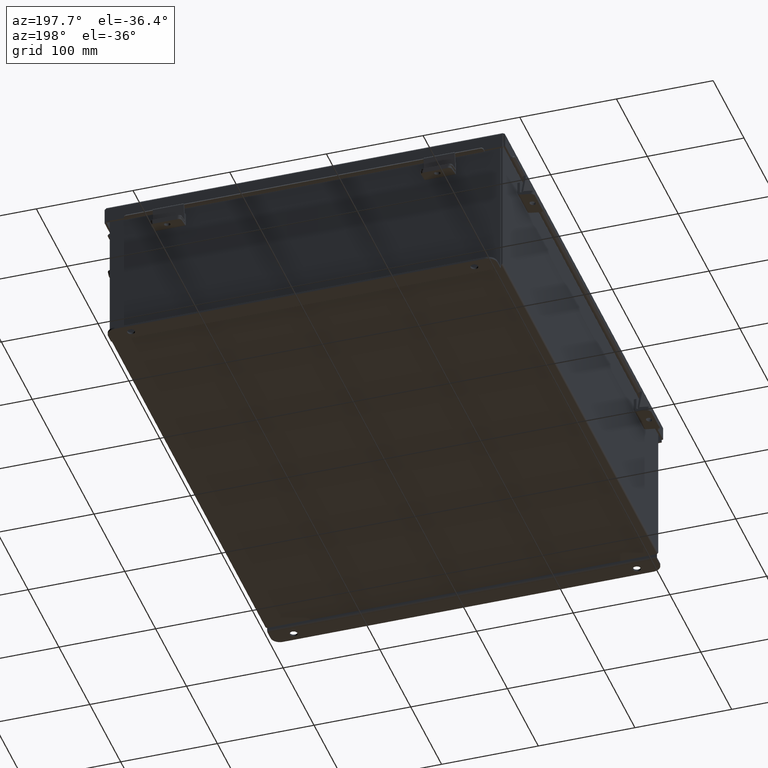
[diagram: clean part render]
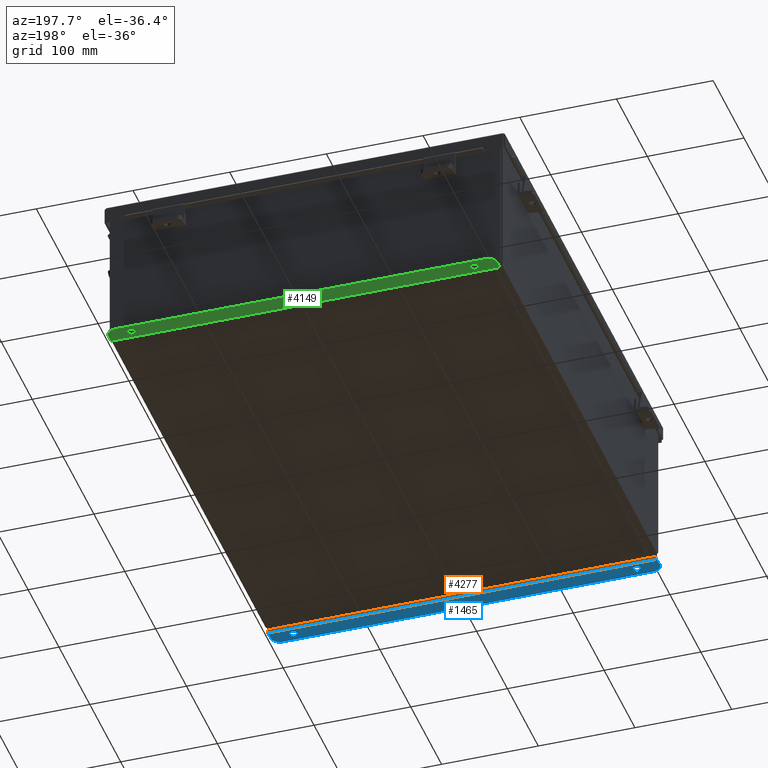
[diagram: same view with three faces highlighted in distinct colors, each labeled with its STEP entity id]
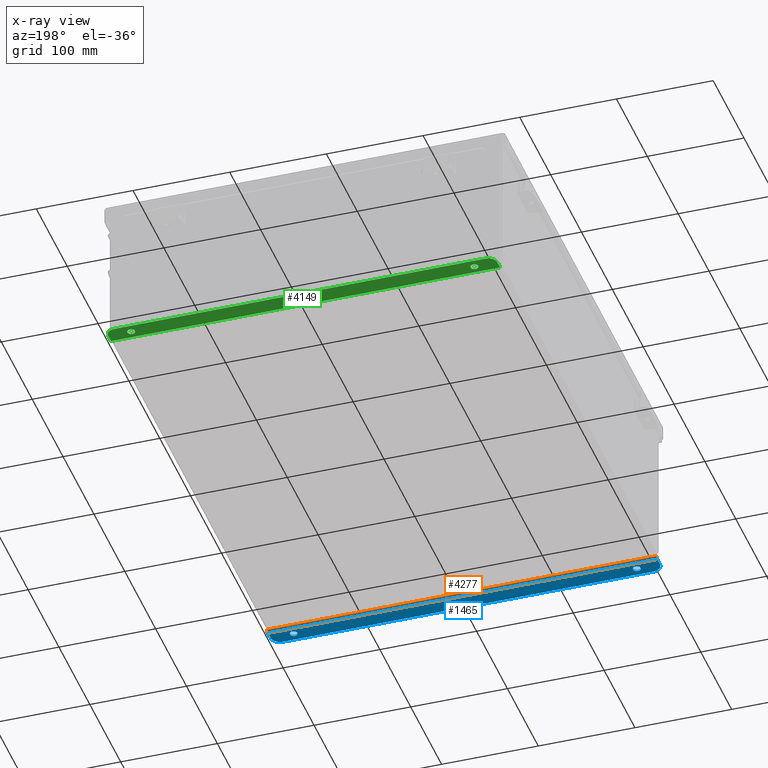
[diagram: x-ray of the same camera — body ghosted, the three highlighted faces saturated]
A machine part, auxiliary view with three faces highlighted in distinct colors.
The next image is the same camera in x-ray (body ghosted, the three faces saturated) — at least one of them is partly hidden behind the body in this view.
Their STEP definitions:

[orange] entity #4277 — the highlighted cylindrical surface (edge-blend (fillet) strip) has radius 2.2276 mm, axis along (1, 0, -0).
#2 = CARTESIAN_POINT ( 'NONE',  ( -7.925299999999992000, 0.01300000000000010700, -3.099299999999999900 ) ) ;
#236 = DIRECTION ( 'NONE',  ( 0.0000000000000000000, -3.699053013085864000E-015, -1.000000000000000000 ) ) ;
#559 = EDGE_CURVE ( 'NONE', #1332, #1874, #717, .T. ) ;
#597 = ORIENTED_EDGE ( 'NONE', *, *, #772, .T. ) ;
#684 = CARTESIAN_POINT ( 'NONE',  ( -7.925299999999992000, 0.01300000000000010700, -3.099299999999999900 ) ) ;
#717 = CIRCLE ( 'NONE', #1003, 0.08770000000000026400 ) ;
#772 = EDGE_CURVE ( 'NONE', #1332, #1534, #9750, .T. ) ;
#832 = CARTESIAN_POINT ( 'NONE',  ( 7.925300000000007100, -0.07470000000000015500, -3.099299999999999900 ) ) ;
#913 = CARTESIAN_POINT ( 'NONE',  ( 7.925299999999998200, 0.01300000000000010700, -3.187000000000000300 ) ) ;
#1003 = AXIS2_PLACEMENT_3D ( 'NONE', #684, #8472, #1933 ) ;
#1270 = DIRECTION ( 'NONE',  ( 0.0000000000000000000, 0.0000000000000000000, 1.000000000000000000 ) ) ;
#1332 = VERTEX_POINT ( 'NONE', #9267 ) ;
#1534 = VERTEX_POINT ( 'NONE', #913 ) ;
#1827 = DIRECTION ( 'NONE',  ( -1.000000000000000000, -4.910036603141682400E-031, 0.0000000000000000000 ) ) ;
#1874 = VERTEX_POINT ( 'NONE', #4211 ) ;
#1933 = DIRECTION ( 'NONE',  ( 0.0000000000000000000, 0.0000000000000000000, 1.000000000000000000 ) ) ;
#2601 = CARTESIAN_POINT ( 'NONE',  ( -7.925299999999992000, -0.07470000000000015500, -3.099299999999999900 ) ) ;
#3396 = EDGE_LOOP ( 'NONE', ( #7494, #7269, #597, #6032 ) ) ;
#3594 = EDGE_CURVE ( 'NONE', #5467, #1534, #8526, .T. ) ;
#3736 = DIRECTION ( 'NONE',  ( 1.000000000000000000, 4.910036603141682400E-031, -0.0000000000000000000 ) ) ;
#3997 = EDGE_CURVE ( 'NONE', #1874, #5467, #4055, .T. ) ;
#4055 = LINE ( 'NONE', #2601, #4443 ) ;
#4211 = CARTESIAN_POINT ( 'NONE',  ( -7.925299999999992000, -0.07470000000000015500, -3.099299999999999900 ) ) ;
#4277 = ADVANCED_FACE ( 'NONE', ( #8967 ), #9432, .T. ) ;
#4443 = VECTOR ( 'NONE', #3736, 39.37007874015748100 ) ;
#4488 = AXIS2_PLACEMENT_3D ( 'NONE', #9495, #6227, #1270 ) ;
#5467 = VERTEX_POINT ( 'NONE', #832 ) ;
#5705 = VECTOR ( 'NONE', #7941, 39.37007874015748100 ) ;
#6032 = ORIENTED_EDGE ( 'NONE', *, *, #3594, .F. ) ;
#6227 = DIRECTION ( 'NONE',  ( 1.000000000000000000, 4.910036603141682400E-031, -0.0000000000000000000 ) ) ;
#7151 = CARTESIAN_POINT ( 'NONE',  ( 7.925299999999998200, 0.01300000000000229300, -3.187000000000000300 ) ) ;
#7269 = ORIENTED_EDGE ( 'NONE', *, *, #559, .F. ) ;
#7494 = ORIENTED_EDGE ( 'NONE', *, *, #3997, .F. ) ;
#7941 = DIRECTION ( 'NONE',  ( 1.000000000000000000, 4.910036603141682400E-031, -0.0000000000000000000 ) ) ;
#8472 = DIRECTION ( 'NONE',  ( -1.000000000000000000, -4.910036603141682400E-031, 0.0000000000000000000 ) ) ;
#8526 = CIRCLE ( 'NONE', #4488, 0.08770000000000026400 ) ;
#8967 = FACE_OUTER_BOUND ( 'NONE', #3396, .T. ) ;
#9267 = CARTESIAN_POINT ( 'NONE',  ( -7.925300000000000900, 0.01300000000000010700, -3.187000000000000300 ) ) ;
#9432 = CYLINDRICAL_SURFACE ( 'NONE', #9794, 0.08770000000000026400 ) ;
#9495 = CARTESIAN_POINT ( 'NONE',  ( 7.925300000000007100, 0.01300000000000010700, -3.099299999999999900 ) ) ;
#9750 = LINE ( 'NONE', #7151, #5705 ) ;
#9794 = AXIS2_PLACEMENT_3D ( 'NONE', #2, #1827, #236 ) ;

[blue] entity #1465 — the highlighted planar face has unit normal (0, -0, 1).
#29 = VERTEX_POINT ( 'NONE', #5731 ) ;
#321 = CIRCLE ( 'NONE', #6153, 0.1560000000000001900 ) ;
#406 = LINE ( 'NONE', #1013, #4359 ) ;
#641 = FACE_OUTER_BOUND ( 'NONE', #7538, .T. ) ;
#748 = DIRECTION ( 'NONE',  ( 4.919856193148104900E-031, 1.000000000000000000, -3.702694488566362300E-015 ) ) ;
#762 = PLANE ( 'NONE',  #6605 ) ;
#772 = EDGE_CURVE ( 'NONE', #1332, #1534, #9750, .T. ) ;
#777 = CARTESIAN_POINT ( 'NONE',  ( -7.925300000000000900, -1.092739197465705300E-014, -3.187000000000000300 ) ) ;
#791 = CARTESIAN_POINT ( 'NONE',  ( -6.987799999999992900, 0.2067999999999984900, -3.187000000000001200 ) ) ;
#907 = ORIENTED_EDGE ( 'NONE', *, *, #2309, .T. ) ;
#913 = CARTESIAN_POINT ( 'NONE',  ( 7.925299999999998200, 0.01300000000000010700, -3.187000000000000300 ) ) ;
#1006 = AXIS2_PLACEMENT_3D ( 'NONE', #7718, #5839, #7461 ) ;
#1013 = CARTESIAN_POINT ( 'NONE',  ( 7.925299999999998200, -1.092739197465705300E-014, -3.187000000000000300 ) ) ;
#1040 = ORIENTED_EDGE ( 'NONE', *, *, #5583, .F. ) ;
#1220 = VERTEX_POINT ( 'NONE', #791 ) ;
#1332 = VERTEX_POINT ( 'NONE', #9267 ) ;
#1465 = ADVANCED_FACE ( 'NONE', ( #6835, #4266, #641 ), #762, .F. ) ;
#1495 = VERTEX_POINT ( 'NONE', #3839 ) ;
#1534 = VERTEX_POINT ( 'NONE', #913 ) ;
#1720 = ORIENTED_EDGE ( 'NONE', *, *, #6229, .F. ) ;
#1963 = DIRECTION ( 'NONE',  ( 0.0000000000000000000, 3.702694488566362300E-015, 1.000000000000000000 ) ) ;
#1967 = DIRECTION ( 'NONE',  ( 0.0000000000000000000, -1.000000000000000000, 4.370956789862820400E-015 ) ) ;
#2001 = DIRECTION ( 'NONE',  ( 0.0000000000000000000, -1.000000000000000000, 4.370956789862820400E-015 ) ) ;
#2309 = EDGE_CURVE ( 'NONE', #4722, #7792, #5038, .T. ) ;
#2438 = ORIENTED_EDGE ( 'NONE', *, *, #7748, .F. ) ;
#2459 = VERTEX_POINT ( 'NONE', #2623 ) ;
#2619 = ORIENTED_EDGE ( 'NONE', *, *, #772, .F. ) ;
#2623 = CARTESIAN_POINT ( 'NONE',  ( 6.987800000000008000, 0.2068000000000006800, -3.187000000000000700 ) ) ;
#3031 = DIRECTION ( 'NONE',  ( 1.000000000000000000, 4.910036603141682400E-031, 0.0000000000000000000 ) ) ;
#3076 = ORIENTED_EDGE ( 'NONE', *, *, #8974, .T. ) ;
#3181 = EDGE_CURVE ( 'NONE', #4910, #1495, #5172, .T. ) ;
#3289 = LINE ( 'NONE', #777, #7609 ) ;
#3418 = LINE ( 'NONE', #6237, #9568 ) ;
#3433 = CARTESIAN_POINT ( 'NONE',  ( -6.987800000000000900, 0.3627999999999986800, -3.187000000000001600 ) ) ;
#3462 = VERTEX_POINT ( 'NONE', #5230 ) ;
#3744 = EDGE_LOOP ( 'NONE', ( #7383, #1720 ) ) ;
#3839 = CARTESIAN_POINT ( 'NONE',  ( -7.550300000000000900, 0.7377999999999989000, -3.187000000000002900 ) ) ;
#4173 = AXIS2_PLACEMENT_3D ( 'NONE', #4371, #5069, #2001 ) ;
#4216 = CARTESIAN_POINT ( 'NONE',  ( -6.987800000000000900, 0.3627999999999986800, -3.187000000000001600 ) ) ;
#4258 = DIRECTION ( 'NONE',  ( 0.0000000000000000000, 1.000000000000000000, -3.502369222646487000E-015 ) ) ;
#4266 = FACE_BOUND ( 'NONE', #7063, .T. ) ;
#4288 = CARTESIAN_POINT ( 'NONE',  ( 0.0000000000000000000, -1.092739197465705300E-014, -3.187000000000000300 ) ) ;
#4359 = VECTOR ( 'NONE', #6472, 39.37007874015748100 ) ;
#4371 = CARTESIAN_POINT ( 'NONE',  ( -7.550300000000000900, 0.3627999999999986800, -3.187000000000001200 ) ) ;
#4520 = DIRECTION ( 'NONE',  ( 0.0000000000000000000, -3.362274453740631800E-015, -1.000000000000000000 ) ) ;
#4722 = VERTEX_POINT ( 'NONE', #5330 ) ;
#4910 = VERTEX_POINT ( 'NONE', #9457 ) ;
#4929 = ORIENTED_EDGE ( 'NONE', *, *, #3181, .T. ) ;
#5009 = DIRECTION ( 'NONE',  ( 0.0000000000000000000, 1.000000000000000000, -3.502369222646487000E-015 ) ) ;
#5038 = CIRCLE ( 'NONE', #7592, 0.3750000000000000600 ) ;
#5069 = DIRECTION ( 'NONE',  ( -0.0000000000000000000, -3.702694488566362300E-015, -1.000000000000000000 ) ) ;
#5172 = CIRCLE ( 'NONE', #4173, 0.3750000000000000600 ) ;
#5206 = AXIS2_PLACEMENT_3D ( 'NONE', #3433, #8831, #4258 ) ;
#5230 = CARTESIAN_POINT ( 'NONE',  ( 6.987799999999999100, 0.5188000000000010400, -3.187000000000001600 ) ) ;
#5330 = CARTESIAN_POINT ( 'NONE',  ( 7.550299999999998200, 0.7378000000000011200, -3.187000000000002900 ) ) ;
#5519 = ORIENTED_EDGE ( 'NONE', *, *, #9649, .T. ) ;
#5583 = EDGE_CURVE ( 'NONE', #2459, #3462, #6208, .T. ) ;
#5705 = VECTOR ( 'NONE', #7941, 39.37007874015748100 ) ;
#5731 = CARTESIAN_POINT ( 'NONE',  ( -6.987800000000000900, 0.5187999999999988200, -3.187000000000002500 ) ) ;
#5839 = DIRECTION ( 'NONE',  ( 0.0000000000000000000, -3.362274453740631800E-015, -1.000000000000000000 ) ) ;
#6153 = AXIS2_PLACEMENT_3D ( 'NONE', #4216, #9540, #5009 ) ;
#6208 = CIRCLE ( 'NONE', #1006, 0.1560000000000001900 ) ;
#6229 = EDGE_CURVE ( 'NONE', #1220, #29, #7558, .T. ) ;
#6237 = CARTESIAN_POINT ( 'NONE',  ( -2.035385365534024800E-024, 0.7377999999999989000, -3.187000000000002900 ) ) ;
#6472 = DIRECTION ( 'NONE',  ( -4.919856193148104900E-031, -1.000000000000000000, 3.702694488566362300E-015 ) ) ;
#6605 = AXIS2_PLACEMENT_3D ( 'NONE', #4288, #1963, #9780 ) ;
#6812 = EDGE_CURVE ( 'NONE', #7792, #1534, #406, .T. ) ;
#6835 = FACE_BOUND ( 'NONE', #3744, .T. ) ;
#7063 = EDGE_LOOP ( 'NONE', ( #2438, #1040 ) ) ;
#7151 = CARTESIAN_POINT ( 'NONE',  ( 7.925299999999998200, 0.01300000000000229300, -3.187000000000000300 ) ) ;
#7383 = ORIENTED_EDGE ( 'NONE', *, *, #8229, .F. ) ;
#7461 = DIRECTION ( 'NONE',  ( 0.0000000000000000000, 1.000000000000000000, -3.502369222646487000E-015 ) ) ;
#7538 = EDGE_LOOP ( 'NONE', ( #5519, #4929, #3076, #907, #9826, #2619 ) ) ;
#7558 = CIRCLE ( 'NONE', #5206, 0.1560000000000001900 ) ;
#7592 = AXIS2_PLACEMENT_3D ( 'NONE', #8244, #8955, #1967 ) ;
#7609 = VECTOR ( 'NONE', #748, 39.37007874015748100 ) ;
#7718 = CARTESIAN_POINT ( 'NONE',  ( 6.987799999999999100, 0.3628000000000008400, -3.187000000000001200 ) ) ;
#7748 = EDGE_CURVE ( 'NONE', #3462, #2459, #9708, .T. ) ;
#7792 = VERTEX_POINT ( 'NONE', #8388 ) ;
#7941 = DIRECTION ( 'NONE',  ( 1.000000000000000000, 4.910036603141682400E-031, -0.0000000000000000000 ) ) ;
#8229 = EDGE_CURVE ( 'NONE', #29, #1220, #321, .T. ) ;
#8244 = CARTESIAN_POINT ( 'NONE',  ( 7.550299999999998200, 0.3628000000000008400, -3.187000000000001200 ) ) ;
#8388 = CARTESIAN_POINT ( 'NONE',  ( 7.925299999999998200, 0.3628000000000008400, -3.187000000000001600 ) ) ;
#8831 = DIRECTION ( 'NONE',  ( 0.0000000000000000000, -3.362274453740631800E-015, -1.000000000000000000 ) ) ;
#8955 = DIRECTION ( 'NONE',  ( -0.0000000000000000000, -3.702694488566362300E-015, -1.000000000000000000 ) ) ;
#8974 = EDGE_CURVE ( 'NONE', #1495, #4722, #3418, .T. ) ;
#9069 = CARTESIAN_POINT ( 'NONE',  ( 6.987799999999999100, 0.3628000000000008400, -3.187000000000001200 ) ) ;
#9267 = CARTESIAN_POINT ( 'NONE',  ( -7.925300000000000900, 0.01300000000000010700, -3.187000000000000300 ) ) ;
#9457 = CARTESIAN_POINT ( 'NONE',  ( -7.925300000000000900, 0.3627999999999986800, -3.187000000000005600 ) ) ;
#9540 = DIRECTION ( 'NONE',  ( 0.0000000000000000000, -3.362274453740631800E-015, -1.000000000000000000 ) ) ;
#9568 = VECTOR ( 'NONE', #3031, 39.37007874015748100 ) ;
#9581 = AXIS2_PLACEMENT_3D ( 'NONE', #9069, #4520, #9813 ) ;
#9649 = EDGE_CURVE ( 'NONE', #1332, #4910, #3289, .T. ) ;
#9708 = CIRCLE ( 'NONE', #9581, 0.1560000000000001900 ) ;
#9750 = LINE ( 'NONE', #7151, #5705 ) ;
#9780 = DIRECTION ( 'NONE',  ( -4.919856193148104900E-031, -1.000000000000000000, 3.702694488566362300E-015 ) ) ;
#9813 = DIRECTION ( 'NONE',  ( 0.0000000000000000000, 1.000000000000000000, -3.502369222646487000E-015 ) ) ;
#9826 = ORIENTED_EDGE ( 'NONE', *, *, #6812, .T. ) ;

[green] entity #4149 — the highlighted planar face has unit normal (0, 0, 1).
#55 = CARTESIAN_POINT ( 'NONE',  ( 7.550299999999998200, 0.7377999999999989000, -3.187000000000002900 ) ) ;
#434 = ORIENTED_EDGE ( 'NONE', *, *, #7650, .T. ) ;
#495 = VERTEX_POINT ( 'NONE', #1295 ) ;
#511 = VECTOR ( 'NONE', #3260, 39.37007874015748100 ) ;
#565 = EDGE_LOOP ( 'NONE', ( #5148, #9525 ) ) ;
#576 = DIRECTION ( 'NONE',  ( 0.0000000000000000000, -3.702694488566362300E-015, -1.000000000000000000 ) ) ;
#914 = CARTESIAN_POINT ( 'NONE',  ( -6.987800000000000900, 0.3628000000000008400, -3.187000000000001200 ) ) ;
#970 = DIRECTION ( 'NONE',  ( 0.0000000000000000000, 3.702694488566362300E-015, 1.000000000000000000 ) ) ;
#1295 = CARTESIAN_POINT ( 'NONE',  ( -6.987800000000000900, 0.2068000000000006800, -3.187000000000000700 ) ) ;
#1553 = AXIS2_PLACEMENT_3D ( 'NONE', #5229, #576, #6030 ) ;
#1678 = DIRECTION ( 'NONE',  ( 0.0000000000000000000, 1.000000000000000000, -3.502369222646487000E-015 ) ) ;
#1908 = CARTESIAN_POINT ( 'NONE',  ( 6.987799999999999100, 0.3628000000000008400, -3.187000000000001200 ) ) ;
#1931 = ORIENTED_EDGE ( 'NONE', *, *, #9806, .F. ) ;
#2003 = AXIS2_PLACEMENT_3D ( 'NONE', #8449, #3799, #9161 ) ;
#2155 = LINE ( 'NONE', #2362, #5204 ) ;
#2188 = EDGE_CURVE ( 'NONE', #3568, #2647, #6849, .T. ) ;
#2362 = CARTESIAN_POINT ( 'NONE',  ( 7.925299999999998200, -1.092739197465705300E-014, -3.187000000000000300 ) ) ;
#2397 = DIRECTION ( 'NONE',  ( 1.000000000000000000, -0.0000000000000000000, -0.0000000000000000000 ) ) ;
#2398 = AXIS2_PLACEMENT_3D ( 'NONE', #7177, #2465, #7927 ) ;
#2465 = DIRECTION ( 'NONE',  ( 0.0000000000000000000, -3.702694488566362300E-015, -1.000000000000000000 ) ) ;
#2520 = ORIENTED_EDGE ( 'NONE', *, *, #8072, .T. ) ;
#2535 = AXIS2_PLACEMENT_3D ( 'NONE', #1908, #5158, #4201 ) ;
#2578 = LINE ( 'NONE', #3788, #9078 ) ;
#2585 = VERTEX_POINT ( 'NONE', #55 ) ;
#2647 = VERTEX_POINT ( 'NONE', #6863 ) ;
#2739 = VERTEX_POINT ( 'NONE', #4131 ) ;
#2958 = CIRCLE ( 'NONE', #1553, 0.1560000000000001900 ) ;
#3072 = FACE_BOUND ( 'NONE', #565, .T. ) ;
#3183 = FACE_BOUND ( 'NONE', #5101, .T. ) ;
#3260 = DIRECTION ( 'NONE',  ( 1.000000000000000000, 0.0000000000000000000, -0.0000000000000000000 ) ) ;
#3350 = CIRCLE ( 'NONE', #8233, 0.1560000000000001900 ) ;
#3568 = VERTEX_POINT ( 'NONE', #5546 ) ;
#3668 = CARTESIAN_POINT ( 'NONE',  ( 7.925299999999998200, 0.01300000000000010700, -3.187000000000000300 ) ) ;
#3681 = FACE_OUTER_BOUND ( 'NONE', #7362, .T. ) ;
#3788 = CARTESIAN_POINT ( 'NONE',  ( -7.925300000000000900, -1.092739197465705300E-014, -3.187000000000000300 ) ) ;
#3799 = DIRECTION ( 'NONE',  ( -0.0000000000000000000, -3.702694488566362300E-015, -1.000000000000000000 ) ) ;
#3877 = DIRECTION ( 'NONE',  ( 0.0000000000000000000, -1.000000000000000000, 3.702694488566362300E-015 ) ) ;
#4006 = LINE ( 'NONE', #4870, #511 ) ;
#4007 = VERTEX_POINT ( 'NONE', #4774 ) ;
#4115 = ORIENTED_EDGE ( 'NONE', *, *, #6556, .T. ) ;
#4131 = CARTESIAN_POINT ( 'NONE',  ( -7.550300000000000900, 0.7377999999999989000, -3.187000000000002900 ) ) ;
#4149 = ADVANCED_FACE ( 'NONE', ( #3072, #3183, #3681 ), #8359, .F. ) ;
#4201 = DIRECTION ( 'NONE',  ( 0.0000000000000000000, 1.000000000000000000, -3.502369222646487000E-015 ) ) ;
#4260 = DIRECTION ( 'NONE',  ( -0.0000000000000000000, -3.702694488566362300E-015, -1.000000000000000000 ) ) ;
#4412 = CARTESIAN_POINT ( 'NONE',  ( -6.987800000000000900, 0.5188000000000010400, -3.187000000000001600 ) ) ;
#4471 = EDGE_CURVE ( 'NONE', #7576, #4007, #2578, .T. ) ;
#4673 = ORIENTED_EDGE ( 'NONE', *, *, #5976, .T. ) ;
#4774 = CARTESIAN_POINT ( 'NONE',  ( -7.925300000000000900, 0.3628000000000008400, -3.187000000000001200 ) ) ;
#4870 = CARTESIAN_POINT ( 'NONE',  ( 0.0000000000000000000, 0.7377999999999989000, -3.187000000000002900 ) ) ;
#5058 = VERTEX_POINT ( 'NONE', #3668 ) ;
#5101 = EDGE_LOOP ( 'NONE', ( #9429, #9319 ) ) ;
#5148 = ORIENTED_EDGE ( 'NONE', *, *, #6000, .F. ) ;
#5158 = DIRECTION ( 'NONE',  ( 0.0000000000000000000, -3.702694488566362300E-015, -1.000000000000000000 ) ) ;
#5204 = VECTOR ( 'NONE', #3877, 39.37007874015748100 ) ;
#5229 = CARTESIAN_POINT ( 'NONE',  ( -6.987800000000000900, 0.3628000000000008400, -3.187000000000001200 ) ) ;
#5361 = VERTEX_POINT ( 'NONE', #4412 ) ;
#5478 = CIRCLE ( 'NONE', #2398, 0.1560000000000001900 ) ;
#5546 = CARTESIAN_POINT ( 'NONE',  ( 6.987799999999999100, 0.2068000000000006800, -3.187000000000000700 ) ) ;
#5976 = EDGE_CURVE ( 'NONE', #8509, #5058, #2155, .T. ) ;
#6000 = EDGE_CURVE ( 'NONE', #5361, #495, #3350, .T. ) ;
#6030 = DIRECTION ( 'NONE',  ( 0.0000000000000000000, 1.000000000000000000, -3.502369222646487000E-015 ) ) ;
#6307 = VECTOR ( 'NONE', #2397, 39.37007874015748100 ) ;
#6376 = DIRECTION ( 'NONE',  ( 0.0000000000000000000, -3.702694488566362300E-015, -1.000000000000000000 ) ) ;
#6556 = EDGE_CURVE ( 'NONE', #2585, #8509, #6939, .T. ) ;
#6563 = DIRECTION ( 'NONE',  ( 0.0000000000000000000, -1.000000000000000000, 3.702694488566362300E-015 ) ) ;
#6716 = CARTESIAN_POINT ( 'NONE',  ( 7.925299999999998200, 0.3628000000000008400, -3.187000000000001200 ) ) ;
#6849 = CIRCLE ( 'NONE', #2535, 0.1560000000000001900 ) ;
#6863 = CARTESIAN_POINT ( 'NONE',  ( 6.987799999999999100, 0.5188000000000010400, -3.187000000000001600 ) ) ;
#6939 = CIRCLE ( 'NONE', #2003, 0.3750000000000000600 ) ;
#7016 = LINE ( 'NONE', #9312, #6307 ) ;
#7177 = CARTESIAN_POINT ( 'NONE',  ( 6.987799999999999100, 0.3628000000000008400, -3.187000000000001200 ) ) ;
#7240 = DIRECTION ( 'NONE',  ( 0.0000000000000000000, 1.000000000000000000, -3.702694488566362300E-015 ) ) ;
#7362 = EDGE_LOOP ( 'NONE', ( #2520, #4115, #4673, #1931, #7610, #434 ) ) ;
#7540 = CIRCLE ( 'NONE', #9740, 0.3750000000000000600 ) ;
#7576 = VERTEX_POINT ( 'NONE', #8750 ) ;
#7610 = ORIENTED_EDGE ( 'NONE', *, *, #4471, .T. ) ;
#7650 = EDGE_CURVE ( 'NONE', #4007, #2739, #7540, .T. ) ;
#7927 = DIRECTION ( 'NONE',  ( 0.0000000000000000000, 1.000000000000000000, -3.502369222646487000E-015 ) ) ;
#7994 = AXIS2_PLACEMENT_3D ( 'NONE', #8183, #970, #6563 ) ;
#8072 = EDGE_CURVE ( 'NONE', #2739, #2585, #4006, .T. ) ;
#8183 = CARTESIAN_POINT ( 'NONE',  ( 0.0000000000000000000, -1.092739197465705300E-014, -3.187000000000000300 ) ) ;
#8233 = AXIS2_PLACEMENT_3D ( 'NONE', #914, #6376, #1678 ) ;
#8359 = PLANE ( 'NONE',  #7994 ) ;
#8449 = CARTESIAN_POINT ( 'NONE',  ( 7.550299999999998200, 0.3628000000000008400, -3.187000000000001200 ) ) ;
#8509 = VERTEX_POINT ( 'NONE', #6716 ) ;
#8750 = CARTESIAN_POINT ( 'NONE',  ( -7.925300000000000900, 0.01300000000000010700, -3.187000000000000300 ) ) ;
#8834 = CARTESIAN_POINT ( 'NONE',  ( -7.550300000000000900, 0.3628000000000008400, -3.187000000000001200 ) ) ;
#9078 = VECTOR ( 'NONE', #7240, 39.37007874015748100 ) ;
#9161 = DIRECTION ( 'NONE',  ( 0.0000000000000000000, -1.000000000000000000, 4.370956789862820400E-015 ) ) ;
#9312 = CARTESIAN_POINT ( 'NONE',  ( 7.925299999999998200, 0.01300000000000010700, -3.187000000000000300 ) ) ;
#9319 = ORIENTED_EDGE ( 'NONE', *, *, #2188, .F. ) ;
#9421 = EDGE_CURVE ( 'NONE', #495, #5361, #2958, .T. ) ;
#9429 = ORIENTED_EDGE ( 'NONE', *, *, #9833, .F. ) ;
#9525 = ORIENTED_EDGE ( 'NONE', *, *, #9421, .F. ) ;
#9582 = DIRECTION ( 'NONE',  ( 0.0000000000000000000, -1.000000000000000000, 4.370956789862820400E-015 ) ) ;
#9740 = AXIS2_PLACEMENT_3D ( 'NONE', #8834, #4260, #9582 ) ;
#9806 = EDGE_CURVE ( 'NONE', #7576, #5058, #7016, .T. ) ;
#9833 = EDGE_CURVE ( 'NONE', #2647, #3568, #5478, .T. ) ;